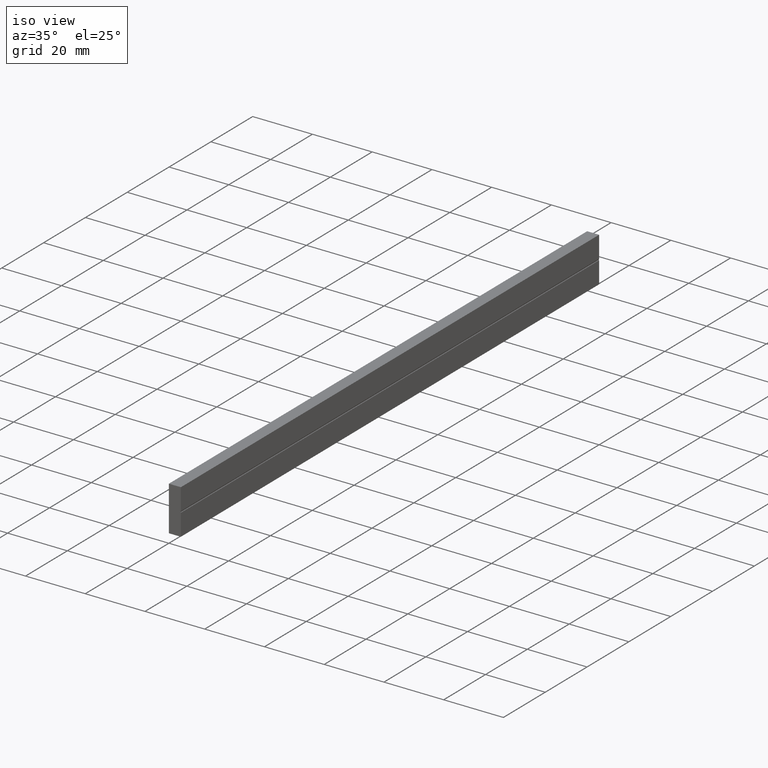
[diagram: clean part render]
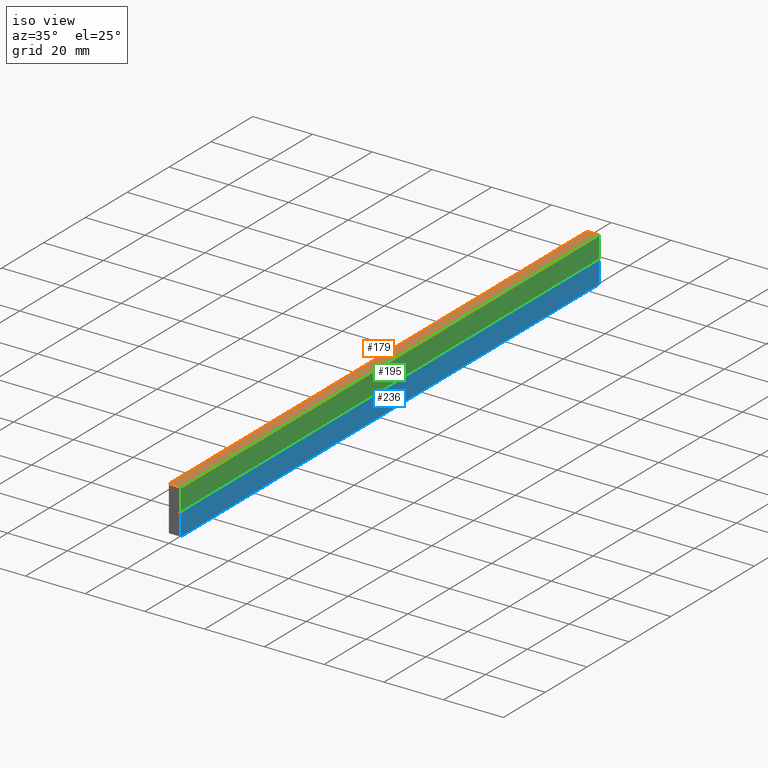
[diagram: same view with three faces highlighted in distinct colors, each labeled with its STEP entity id]
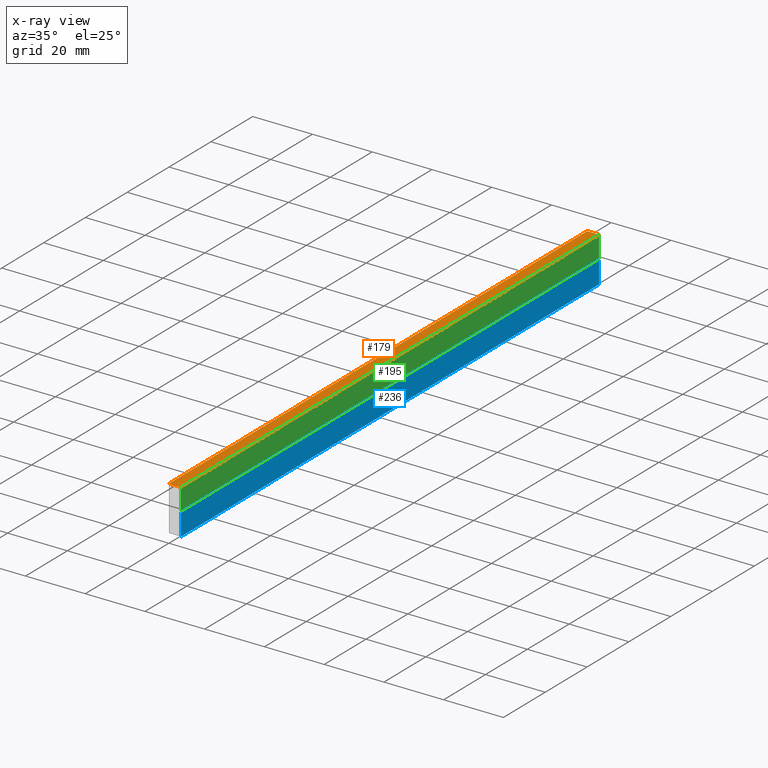
[diagram: x-ray of the same camera — body ghosted, the three highlighted faces saturated]
A machine part, iso view with three faces highlighted in distinct colors.
The next image is the same camera in x-ray (body ghosted, the three faces saturated) — at least one of them is partly hidden behind the body in this view.
Their STEP definitions:

[orange] entity #179 — the highlighted face is a freeform B-spline surface patch.
#49=CARTESIAN_POINT('',(0.0,0.0,15.0));
#50=VERTEX_POINT('',#49);
#87=CARTESIAN_POINT('',(4.0,0.0,15.0));
#88=VERTEX_POINT('',#87);
#94=CARTESIAN_POINT('',(4.0,0.0,15.0));
#95=CARTESIAN_POINT('',(0.0,0.0,15.0));
#96=QUASI_UNIFORM_CURVE('',1,(#94,#95),.UNSPECIFIED.,.F.,.U.);
#97=EDGE_CURVE('',#88,#50,#96,.T.);
#107=CARTESIAN_POINT('',(0.0,200.0,15.0));
#108=VERTEX_POINT('',#107);
#116=CARTESIAN_POINT('',(4.0,200.0,15.0));
#117=VERTEX_POINT('',#116);
#118=CARTESIAN_POINT('',(4.0,200.0,15.0));
#119=CARTESIAN_POINT('',(0.0,200.0,15.0));
#120=QUASI_UNIFORM_CURVE('',1,(#118,#119),.UNSPECIFIED.,.F.,.U.);
#121=EDGE_CURVE('',#117,#108,#120,.T.);
#160=CARTESIAN_POINT('',(-0.199799992247224,-9.989999612361171,15.0));
#161=CARTESIAN_POINT('',(4.199800099535585,-9.989999612361171,15.0));
#162=CARTESIAN_POINT('',(-0.199799992247224,209.990004976779200,15.0));
#163=CARTESIAN_POINT('',(4.199800099535585,209.990004976779200,15.0));
#164=B_SPLINE_SURFACE_WITH_KNOTS('',1,1,((#160,#162),(#161,#163)),.UNSPECIFIED.,.F.,.F.,.U.,(2,2),(2,2),(0.0,4.399600091782808),(0.0,219.980004589140410),.UNSPECIFIED.);
#165=ORIENTED_EDGE('',*,*,#97,.F.);
#166=CARTESIAN_POINT('',(4.0,200.0,15.0));
#167=CARTESIAN_POINT('',(4.0,0.0,15.0));
#168=QUASI_UNIFORM_CURVE('',1,(#166,#167),.UNSPECIFIED.,.F.,.U.);
#169=EDGE_CURVE('',#117,#88,#168,.T.);
#170=ORIENTED_EDGE('',*,*,#169,.F.);
#171=ORIENTED_EDGE('',*,*,#121,.T.);
#172=CARTESIAN_POINT('',(0.0,200.0,15.0));
#173=CARTESIAN_POINT('',(0.0,0.0,15.0));
#174=QUASI_UNIFORM_CURVE('',1,(#172,#173),.UNSPECIFIED.,.F.,.U.);
#175=EDGE_CURVE('',#108,#50,#174,.T.);
#176=ORIENTED_EDGE('',*,*,#175,.T.);
#177=EDGE_LOOP('',(#165,#170,#171,#176));
#178=FACE_OUTER_BOUND('',#177,.T.);
#179=ADVANCED_FACE('',(#178),#164,.T.);

[blue] entity #236 — the highlighted face is a freeform B-spline surface patch.
#58=CARTESIAN_POINT('',(4.0,0.0,0.0));
#59=VERTEX_POINT('',#58);
#65=CARTESIAN_POINT('',(4.0,0.0,7.249999999918490));
#66=VERTEX_POINT('',#65);
#67=CARTESIAN_POINT('',(4.0,0.0,0.0));
#68=CARTESIAN_POINT('',(4.0,0.0,7.249999999918490));
#69=QUASI_UNIFORM_CURVE('',1,(#67,#68),.UNSPECIFIED.,.F.,.U.);
#70=EDGE_CURVE('',#59,#66,#69,.T.);
#130=CARTESIAN_POINT('',(4.0,200.0,7.249999999918490));
#131=VERTEX_POINT('',#130);
#145=CARTESIAN_POINT('',(4.0,200.0,0.0));
#146=VERTEX_POINT('',#145);
#147=CARTESIAN_POINT('',(4.0,200.0,0.0));
#148=CARTESIAN_POINT('',(4.0,200.0,7.249999999918490));
#149=QUASI_UNIFORM_CURVE('',1,(#147,#148),.UNSPECIFIED.,.F.,.U.);
#150=EDGE_CURVE('',#146,#131,#149,.T.);
#211=CARTESIAN_POINT('',(4.0,200.0,7.249999999918490));
#212=CARTESIAN_POINT('',(4.0,0.0,7.249999999918490));
#213=QUASI_UNIFORM_CURVE('',1,(#211,#212),.UNSPECIFIED.,.F.,.U.);
#214=EDGE_CURVE('',#131,#66,#213,.T.);
#221=CARTESIAN_POINT('',(4.0,-9.989999612361194,7.612137485862512));
#222=CARTESIAN_POINT('',(4.0,-9.989999612361194,-0.362137680404175));
#223=CARTESIAN_POINT('',(4.0,209.990004976779200,7.612137485862512));
#224=CARTESIAN_POINT('',(4.0,209.990004976779200,-0.362137680404175));
#225=B_SPLINE_SURFACE_WITH_KNOTS('',1,1,((#221,#223),(#222,#224)),.UNSPECIFIED.,.F.,.F.,.U.,(2,2),(2,2),(0.0,7.974275166266687),(0.0,219.980004589140410),.UNSPECIFIED.);
#226=ORIENTED_EDGE('',*,*,#70,.F.);
#227=CARTESIAN_POINT('',(4.0,200.0,0.0));
#228=CARTESIAN_POINT('',(4.0,0.0,0.0));
#229=QUASI_UNIFORM_CURVE('',1,(#227,#228),.UNSPECIFIED.,.F.,.U.);
#230=EDGE_CURVE('',#146,#59,#229,.T.);
#231=ORIENTED_EDGE('',*,*,#230,.F.);
#232=ORIENTED_EDGE('',*,*,#150,.T.);
#233=ORIENTED_EDGE('',*,*,#214,.T.);
#234=EDGE_LOOP('',(#226,#231,#232,#233));
#235=FACE_OUTER_BOUND('',#234,.T.);
#236=ADVANCED_FACE('',(#235),#225,.T.);

[green] entity #195 — the highlighted face is a freeform B-spline surface patch.
#72=CARTESIAN_POINT('',(4.0,0.0,7.749999999918620));
#73=VERTEX_POINT('',#72);
#87=CARTESIAN_POINT('',(4.0,0.0,15.0));
#88=VERTEX_POINT('',#87);
#89=CARTESIAN_POINT('',(4.0,0.0,7.749999999918620));
#90=CARTESIAN_POINT('',(4.0,0.0,15.0));
#91=QUASI_UNIFORM_CURVE('',1,(#89,#90),.UNSPECIFIED.,.F.,.U.);
#92=EDGE_CURVE('',#73,#88,#91,.T.);
#116=CARTESIAN_POINT('',(4.0,200.0,15.0));
#117=VERTEX_POINT('',#116);
#123=CARTESIAN_POINT('',(4.0,200.0,7.749999999918620));
#124=VERTEX_POINT('',#123);
#125=CARTESIAN_POINT('',(4.0,200.0,7.749999999918620));
#126=CARTESIAN_POINT('',(4.0,200.0,15.0));
#127=QUASI_UNIFORM_CURVE('',1,(#125,#126),.UNSPECIFIED.,.F.,.U.);
#128=EDGE_CURVE('',#124,#117,#127,.T.);
#166=CARTESIAN_POINT('',(4.0,200.0,15.0));
#167=CARTESIAN_POINT('',(4.0,0.0,15.0));
#168=QUASI_UNIFORM_CURVE('',1,(#166,#167),.UNSPECIFIED.,.F.,.U.);
#169=EDGE_CURVE('',#117,#88,#168,.T.);
#180=CARTESIAN_POINT('',(4.0,-9.989999612361171,15.362137485952161));
#181=CARTESIAN_POINT('',(4.0,-9.989999612361171,7.387862319506308));
#182=CARTESIAN_POINT('',(4.0,209.990004976779200,15.362137485952161));
#183=CARTESIAN_POINT('',(4.0,209.990004976779200,7.387862319506308));
#184=B_SPLINE_SURFACE_WITH_KNOTS('',1,1,((#180,#182),(#181,#183)),.UNSPECIFIED.,.F.,.F.,.U.,(2,2),(2,2),(0.0,7.974275166445849),(0.0,219.980004589140410),.UNSPECIFIED.);
#185=ORIENTED_EDGE('',*,*,#92,.F.);
#186=CARTESIAN_POINT('',(4.0,200.0,7.749999999918620));
#187=CARTESIAN_POINT('',(4.0,0.0,7.749999999918620));
#188=QUASI_UNIFORM_CURVE('',1,(#186,#187),.UNSPECIFIED.,.F.,.U.);
#189=EDGE_CURVE('',#124,#73,#188,.T.);
#190=ORIENTED_EDGE('',*,*,#189,.F.);
#191=ORIENTED_EDGE('',*,*,#128,.T.);
#192=ORIENTED_EDGE('',*,*,#169,.T.);
#193=EDGE_LOOP('',(#185,#190,#191,#192));
#194=FACE_OUTER_BOUND('',#193,.T.);
#195=ADVANCED_FACE('',(#194),#184,.T.);